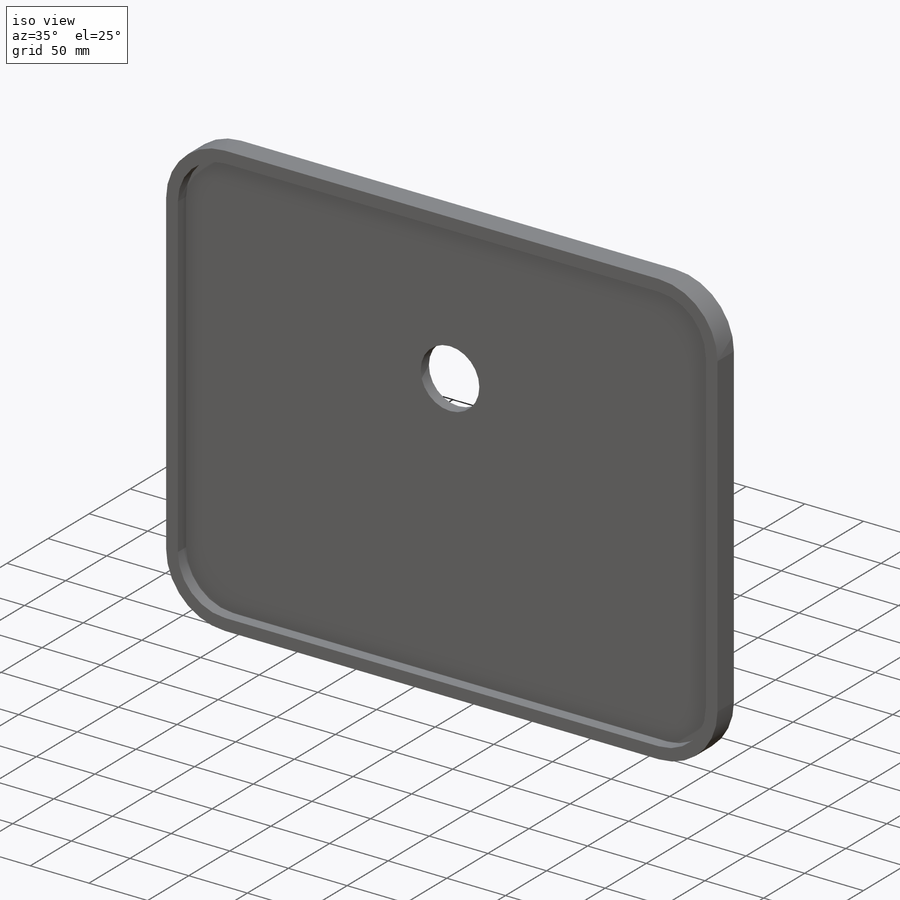
[diagram: iso view]
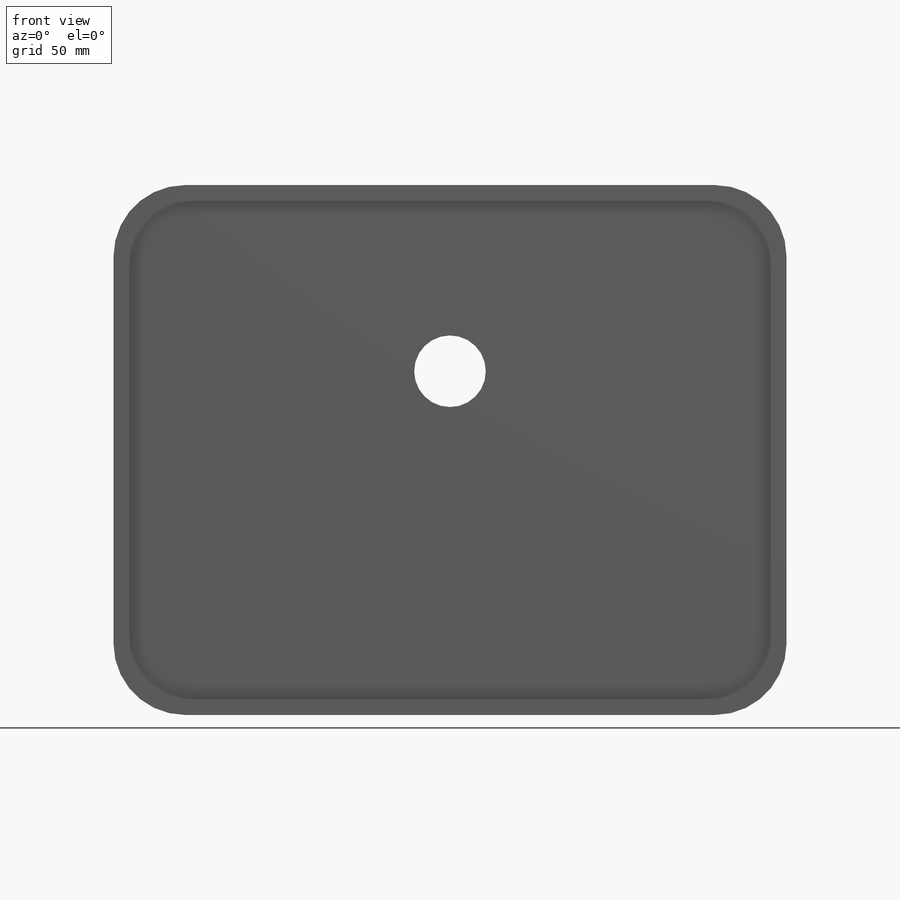
[diagram: front view]
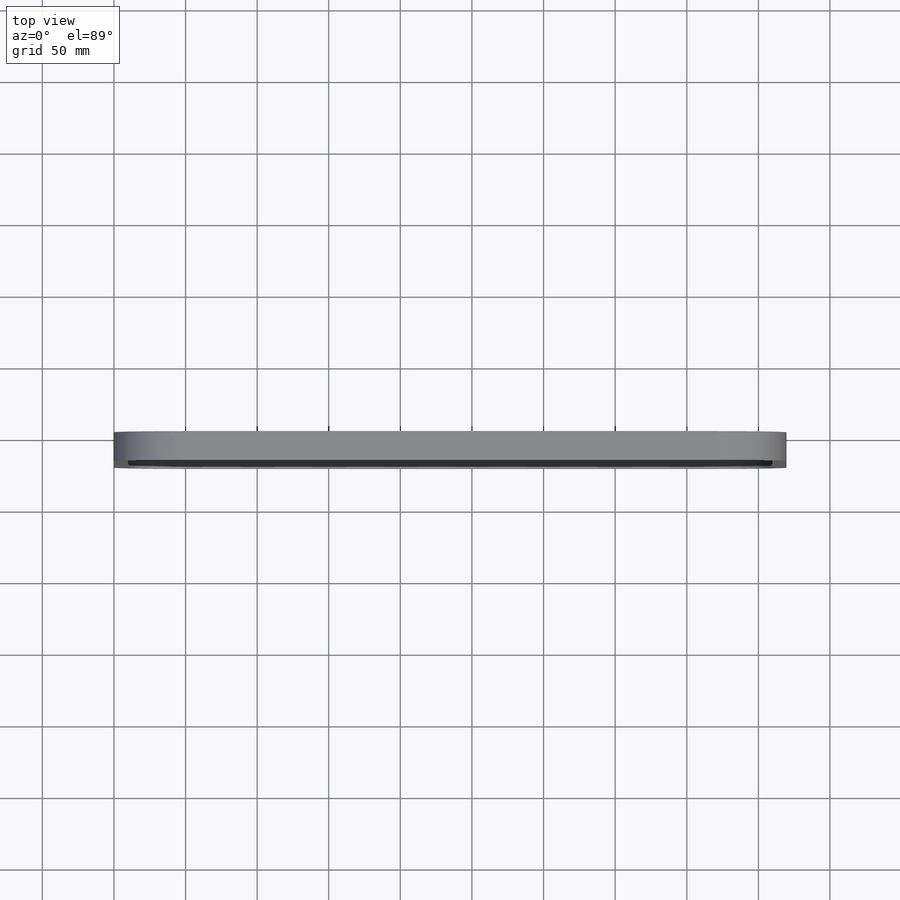
[diagram: top view]
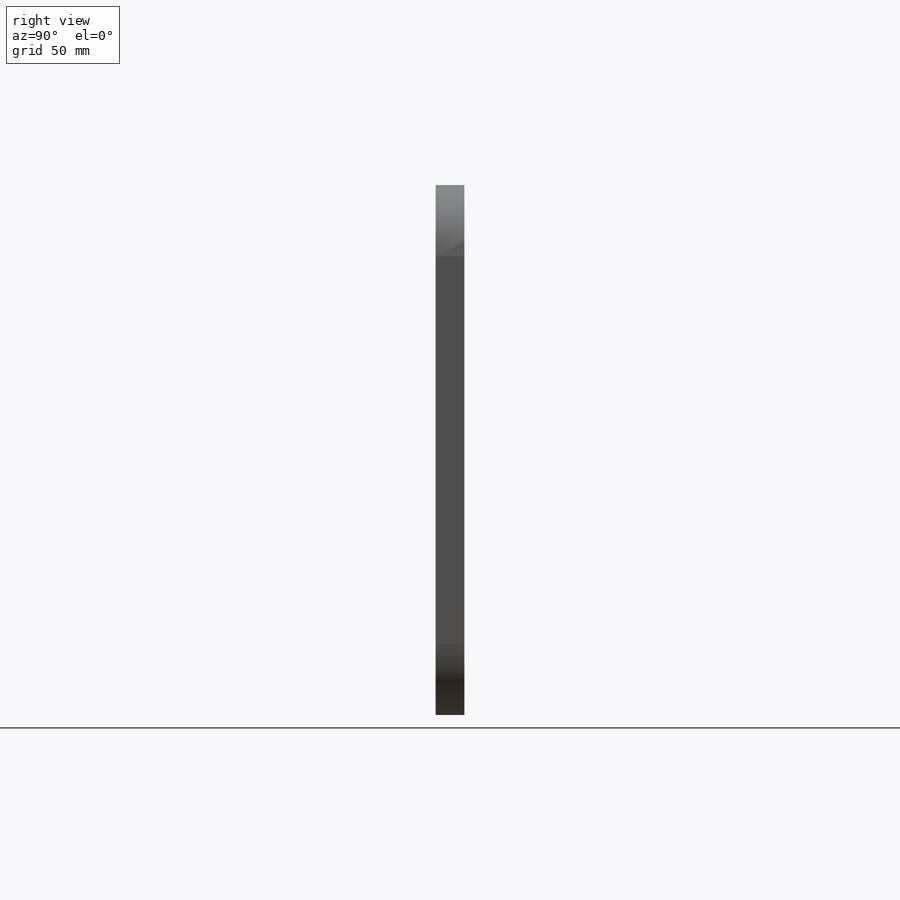
[diagram: right view]
SOLIDWORKS PART (.sldprt)
format: sldprt  version: not decoded by parser v0  size: 187,392 bytes
history: native  units: mm
features: sketch x9, plane x6, extrude x2, material x1, cut_extrude x1 (+13 scaffold rows collapsed)
feature tree (32):
  scaffold x13  (default folders/planes/origin — collapsed)
  material  "Material <nicht festgelegt>"
  plane  "Ebene vorne"
  plane  "Ebene oben"
  plane  "Ebene rechts"
  sketch  "Skizze1"  dims[D3=40.0mm D1=450.0mm D2=350.0mm D4=10.0mm]
  extrude  "Aufsatz-Linear austragen1"  Depth=20mm
  sketch  "Skizze2"  dims[D1=40.0mm]
  extrude  "Aufsatz-Linear austragen2"  Depth=10mm
  sketch  "Skizze3"  dims[D1=225.0mm D2=120.0mm]
  cut_extrude  "Schnitt-Linear austragen1"  Depth=15mm
  plane  "Ebene1"
  sketch  "Skizze6"
  sketch  "Skizze7"
  sketch  "Skizze8"
  plane  "Ebene2"
  sketch  "Skizze9"
  sketch  "Skizze11"
  plane  "Ebene3"
  sketch  "Skizze12"  dims[D1=40.0mm]
decode coverage: 7 of 12 modeling features carry decoded parameters
note: suppression state not decoded; provenance and decode notes live in map.json
